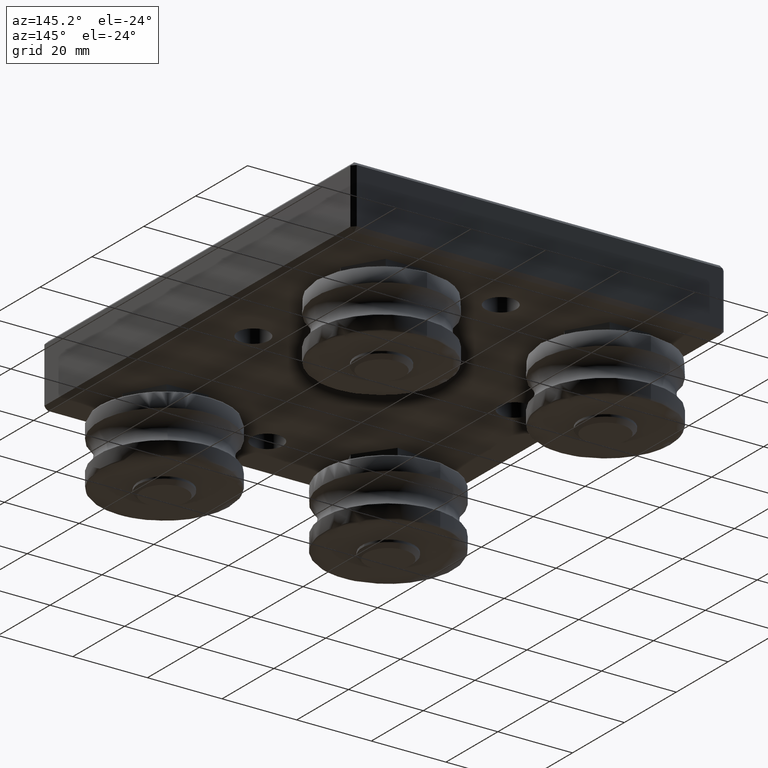
[diagram: clean part render]
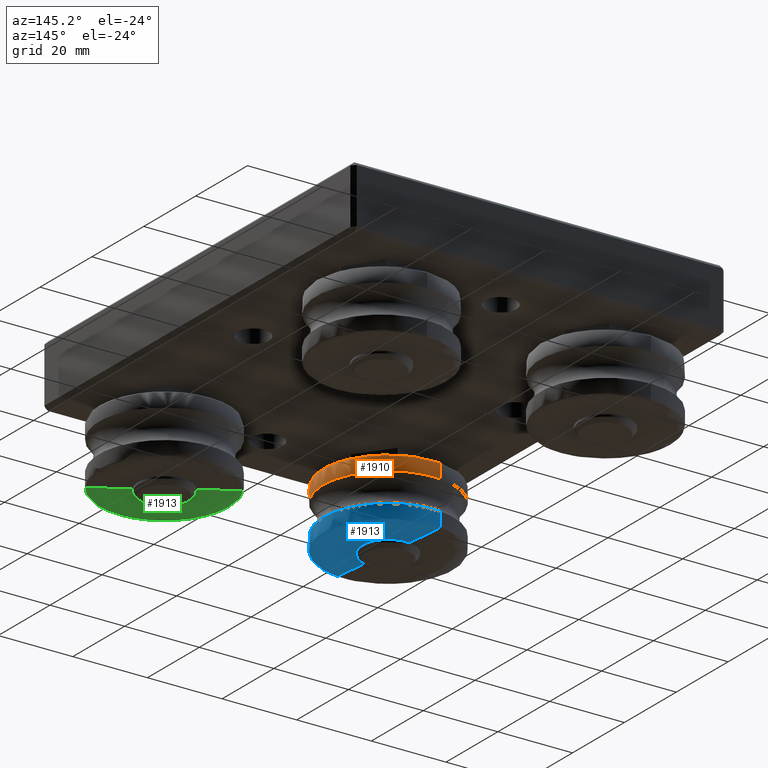
[diagram: same view with three faces highlighted in distinct colors, each labeled with its STEP entity id]
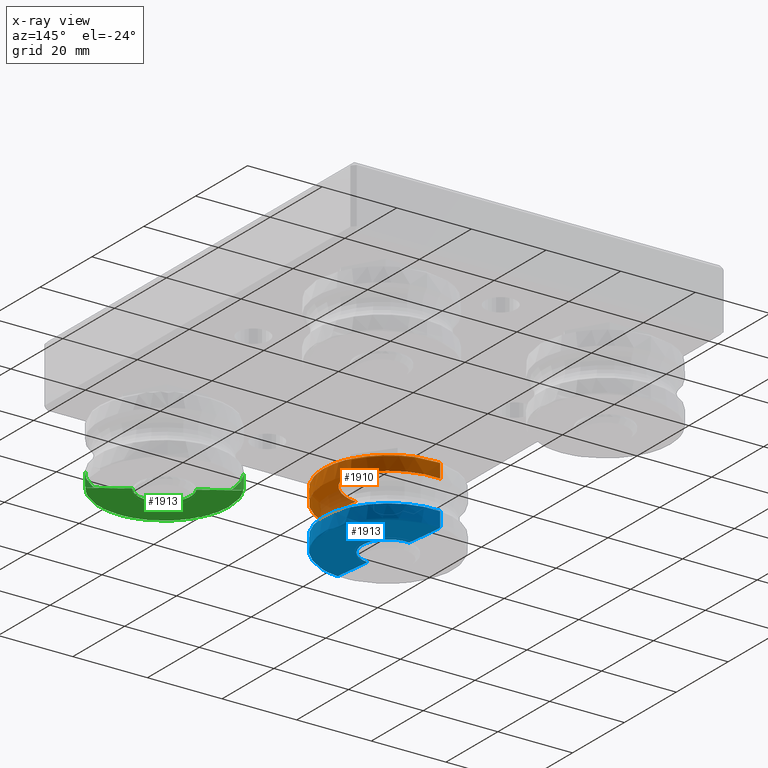
[diagram: x-ray of the same camera — body ghosted, the three highlighted faces saturated]
A machine part, auxiliary view with three faces highlighted in distinct colors.
The next image is the same camera in x-ray (body ghosted, the three faces saturated) — at least one of them is partly hidden behind the body in this view.
Their STEP definitions:

[orange] entity #1910 — the highlighted face is a freeform B-spline surface patch.
#59=(
BOUNDED_CURVE()
B_SPLINE_CURVE(2,(#3633,#3634,#3635,#3636,#3637,#3638,#3639),
 .UNSPECIFIED.,.F.,.F.)
B_SPLINE_CURVE_WITH_KNOTS((3,2,2,3),(-35.0418346007419,-29.0114897153448,
-28.2260915519473,-24.6912064928088),.UNSPECIFIED.)
CURVE()
GEOMETRIC_REPRESENTATION_ITEM()
RATIONAL_B_SPLINE_CURVE((1.,1.,1.,0.707106781186548,1.,1.,1.))
REPRESENTATION_ITEM('')
);
#60=(
BOUNDED_CURVE()
B_SPLINE_CURVE(2,(#3648,#3649,#3650,#3651,#3652,#3653,#3654),
 .UNSPECIFIED.,.F.,.F.)
B_SPLINE_CURVE_WITH_KNOTS((3,2,2,3),(-35.0418346007419,-29.0114897153448,
-28.2260915519473,-24.6912064928088),.UNSPECIFIED.)
CURVE()
GEOMETRIC_REPRESENTATION_ITEM()
RATIONAL_B_SPLINE_CURVE((1.,1.,1.,0.707106781186548,1.,1.,1.))
REPRESENTATION_ITEM('')
);
#73=(
BOUNDED_SURFACE()
B_SPLINE_SURFACE(2,2,((#3569,#3570,#3571,#3572,#3573,#3574,#3575,#3576,
#3577),(#3578,#3579,#3580,#3581,#3582,#3583,#3584,#3585,#3586),(#3587,#3588,
#3589,#3590,#3591,#3592,#3593,#3594,#3595),(#3596,#3597,#3598,#3599,#3600,
#3601,#3602,#3603,#3604),(#3605,#3606,#3607,#3608,#3609,#3610,#3611,#3612,
#3613),(#3614,#3615,#3616,#3617,#3618,#3619,#3620,#3621,#3622),(#3623,#3624,
#3625,#3626,#3627,#3628,#3629,#3630,#3631)),.UNSPECIFIED.,.F.,.T.,.F.)
B_SPLINE_SURFACE_WITH_KNOTS((3,2,2,3),(3,2,2,2,3),(-35.0418346007419,-29.0114897153448,
-28.2260915519473,-24.6590672150182),(4.71238898038469,6.28318530717959,
7.85398163397448,9.42477796076938,10.9955742875643),.UNSPECIFIED.)
GEOMETRIC_REPRESENTATION_ITEM()
RATIONAL_B_SPLINE_SURFACE(((1.,0.707106781186548,1.,0.707106781186548,1.,
0.707106781186548,1.,0.707106781186548,1.),(1.,0.707106781186548,1.,0.707106781186548,
1.,0.707106781186548,1.,0.707106781186548,1.),(1.,0.707106781186548,1.,
0.707106781186548,1.,0.707106781186548,1.,0.707106781186548,1.),(0.707106781186548,
0.5,0.707106781186548,0.5,0.707106781186548,0.5,0.707106781186548,0.5,0.707106781186548),
(1.,0.707106781186548,1.,0.707106781186548,1.,0.707106781186548,1.,0.707106781186548,
1.),(1.,0.707106781186548,1.,0.707106781186548,1.,0.707106781186548,1.,
0.707106781186548,1.),(1.,0.707106781186548,1.,0.707106781186548,1.,0.707106781186548,
1.,0.707106781186548,1.)))
REPRESENTATION_ITEM('')
SURFACE()
);
#283=CIRCLE('',#2178,17.5);
#286=CIRCLE('',#2181,10.9696551146025);
#287=CIRCLE('',#2182,10.9696551146025);
#288=CIRCLE('',#2183,10.9696551146025);
#289=CIRCLE('',#2184,10.9696551146025);
#401=FACE_OUTER_BOUND('',#548,.T.);
#548=EDGE_LOOP('',(#1582,#1583,#1584,#1585,#1586,#1587,#1588));
#961=VERTEX_POINT('',#3563);
#962=VERTEX_POINT('',#3565);
#963=VERTEX_POINT('',#3632);
#964=VERTEX_POINT('',#3640);
#965=VERTEX_POINT('',#3642);
#966=VERTEX_POINT('',#3644);
#967=VERTEX_POINT('',#3646);
#1173=EDGE_CURVE('',#961,#962,#283,.T.);
#1176=EDGE_CURVE('',#963,#961,#59,.T.);
#1177=EDGE_CURVE('',#963,#964,#286,.T.);
#1178=EDGE_CURVE('',#964,#965,#287,.T.);
#1179=EDGE_CURVE('',#965,#966,#288,.T.);
#1180=EDGE_CURVE('',#966,#967,#289,.T.);
#1181=EDGE_CURVE('',#967,#962,#60,.T.);
#1582=ORIENTED_EDGE('',*,*,#1173,.F.);
#1583=ORIENTED_EDGE('',*,*,#1176,.F.);
#1584=ORIENTED_EDGE('',*,*,#1177,.T.);
#1585=ORIENTED_EDGE('',*,*,#1178,.T.);
#1586=ORIENTED_EDGE('',*,*,#1179,.T.);
#1587=ORIENTED_EDGE('',*,*,#1180,.T.);
#1588=ORIENTED_EDGE('',*,*,#1181,.T.);
#1910=ADVANCED_FACE('',(#401),#73,.T.);
#2178=AXIS2_PLACEMENT_3D('',#3566,#2649,#2650);
#2181=AXIS2_PLACEMENT_3D('',#3641,#2655,#2656);
#2182=AXIS2_PLACEMENT_3D('',#3643,#2657,#2658);
#2183=AXIS2_PLACEMENT_3D('',#3645,#2659,#2660);
#2184=AXIS2_PLACEMENT_3D('',#3647,#2661,#2662);
#2649=DIRECTION('center_axis',(0.,0.,-1.));
#2650=DIRECTION('ref_axis',(-1.,0.,0.));
#2655=DIRECTION('center_axis',(1.01208562441235E-14,1.01208562441241E-14,
-1.));
#2656=DIRECTION('ref_axis',(0.,1.,1.01208562441241E-14));
#2657=DIRECTION('center_axis',(1.01208562441235E-14,1.01208562441241E-14,
-1.));
#2658=DIRECTION('ref_axis',(0.,1.,1.01208562441241E-14));
#2659=DIRECTION('center_axis',(1.01208562441235E-14,1.01208562441241E-14,
-1.));
#2660=DIRECTION('ref_axis',(0.,1.,1.01208562441241E-14));
#2661=DIRECTION('center_axis',(1.01208562441235E-14,1.01208562441241E-14,
-1.));
#2662=DIRECTION('ref_axis',(0.,1.,1.01208562441241E-14));
#3563=CARTESIAN_POINT('',(-1.07153055959535E-15,-17.4999999999997,-18.4348850592588));
#3565=CARTESIAN_POINT('',(1.14352971536391E-11,17.5000000000119,-18.4348850592588));
#3566=CARTESIAN_POINT('Origin',(1.14352971536391E-11,1.21291865440298E-11,
-18.4348850592774));
#3569=CARTESIAN_POINT('Ctrl Pts',(1.11299858218672E-11,10.9696551146152,
-14.4000000001203));
#3570=CARTESIAN_POINT('Ctrl Pts',(-10.9696551145919,10.9696551146149,-14.4000000001203));
#3571=CARTESIAN_POINT('Ctrl Pts',(-10.9696551145916,1.18238752122579E-11,
-14.4000000001203));
#3572=CARTESIAN_POINT('Ctrl Pts',(-10.9696551145913,-10.9696551145912,-14.4000000001203));
#3573=CARTESIAN_POINT('Ctrl Pts',(1.1740608485411E-11,-10.9696551145909,
-14.4000000001203));
#3574=CARTESIAN_POINT('Ctrl Pts',(10.9696551146148,-10.9696551145906,-14.4000000001203));
#3575=CARTESIAN_POINT('Ctrl Pts',(10.9696551146145,1.24344978758017E-11,
-14.4000000001203));
#3576=CARTESIAN_POINT('Ctrl Pts',(10.9696551146142,10.9696551146155,-14.4000000001203));
#3577=CARTESIAN_POINT('Ctrl Pts',(1.11299858218672E-11,10.9696551146152,
-14.4000000001203));
#3578=CARTESIAN_POINT('Ctrl Pts',(1.11577413974828E-11,13.9848275573132,
-14.4000000001203));
#3579=CARTESIAN_POINT('Ctrl Pts',(-13.9848275572899,13.9848275573129,-14.4000000001203));
#3580=CARTESIAN_POINT('Ctrl Pts',(-13.9848275572896,1.18516307878735E-11,
-14.4000000001203));
#3581=CARTESIAN_POINT('Ctrl Pts',(-13.9848275572893,-13.9848275572892,-14.4000000001203));
#3582=CARTESIAN_POINT('Ctrl Pts',(1.17128529097954E-11,-13.9848275572889,
-14.4000000001203));
#3583=CARTESIAN_POINT('Ctrl Pts',(13.9848275573127,-13.9848275572886,-14.4000000001203));
#3584=CARTESIAN_POINT('Ctrl Pts',(13.9848275573125,1.24067423001861E-11,
-14.4000000001203));
#3585=CARTESIAN_POINT('Ctrl Pts',(13.9848275573122,13.9848275573134,-14.4000000001203));
#3586=CARTESIAN_POINT('Ctrl Pts',(1.11577413974828E-11,13.9848275573132,
-14.4000000001203));
#3587=CARTESIAN_POINT('Ctrl Pts',(1.11577413974828E-11,17.0000000000122,
-14.4000000001203));
#3588=CARTESIAN_POINT('Ctrl Pts',(-16.9999999999889,17.0000000000119,-14.4000000001203));
#3589=CARTESIAN_POINT('Ctrl Pts',(-16.9999999999886,1.18516307878735E-11,
-14.4000000001203));
#3590=CARTESIAN_POINT('Ctrl Pts',(-16.9999999999883,-16.9999999999882,-14.4000000001203));
#3591=CARTESIAN_POINT('Ctrl Pts',(1.17128529097954E-11,-16.9999999999879,
-14.4000000001203));
#3592=CARTESIAN_POINT('Ctrl Pts',(17.0000000000117,-16.9999999999876,-14.4000000001203));
#3593=CARTESIAN_POINT('Ctrl Pts',(17.0000000000115,1.24067423001861E-11,
-14.4000000001203));
#3594=CARTESIAN_POINT('Ctrl Pts',(17.0000000000112,17.0000000000124,-14.4000000001203));
#3595=CARTESIAN_POINT('Ctrl Pts',(1.11577413974828E-11,17.0000000000122,
-14.4000000001203));
#3596=CARTESIAN_POINT('Ctrl Pts',(1.11799348284053E-11,17.5000000000124,
-14.4000000001202));
#3597=CARTESIAN_POINT('Ctrl Pts',(-17.4999999999891,17.5000000000121,-14.4000000001202));
#3598=CARTESIAN_POINT('Ctrl Pts',(-17.4999999999888,1.1873824218796E-11,
-14.4000000001202));
#3599=CARTESIAN_POINT('Ctrl Pts',(-17.4999999999885,-17.4999999999884,-14.4000000001202));
#3600=CARTESIAN_POINT('Ctrl Pts',(1.16906594788729E-11,-17.4999999999881,
-14.4000000001202));
#3601=CARTESIAN_POINT('Ctrl Pts',(17.5000000000119,-17.4999999999878,-14.4000000001202));
#3602=CARTESIAN_POINT('Ctrl Pts',(17.5000000000117,1.23845488692636E-11,
-14.4000000001202));
#3603=CARTESIAN_POINT('Ctrl Pts',(17.5000000000114,17.5000000000126,-14.4000000001202));
#3604=CARTESIAN_POINT('Ctrl Pts',(1.11799348284053E-11,17.5000000000124,
-14.4000000001202));
#3605=CARTESIAN_POINT('Ctrl Pts',(1.11577413974828E-11,17.5000000000122,
-14.9000000001203));
#3606=CARTESIAN_POINT('Ctrl Pts',(-17.4999999999889,17.5000000000119,-14.9000000001203));
#3607=CARTESIAN_POINT('Ctrl Pts',(-17.4999999999886,1.18516307878735E-11,
-14.9000000001203));
#3608=CARTESIAN_POINT('Ctrl Pts',(-17.4999999999883,-17.4999999999882,-14.9000000001203));
#3609=CARTESIAN_POINT('Ctrl Pts',(1.17128529097954E-11,-17.4999999999879,
-14.9000000001203));
#3610=CARTESIAN_POINT('Ctrl Pts',(17.5000000000117,-17.4999999999876,-14.9000000001203));
#3611=CARTESIAN_POINT('Ctrl Pts',(17.5000000000115,1.24067423001861E-11,
-14.9000000001203));
#3612=CARTESIAN_POINT('Ctrl Pts',(17.5000000000112,17.5000000000124,-14.9000000001203));
#3613=CARTESIAN_POINT('Ctrl Pts',(1.11577413974828E-11,17.5000000000122,
-14.9000000001203));
#3614=CARTESIAN_POINT('Ctrl Pts',(1.11577413974828E-11,17.5000000000122,
-16.6835121685849));
#3615=CARTESIAN_POINT('Ctrl Pts',(-17.4999999999889,17.5000000000119,-16.6835121685849));
#3616=CARTESIAN_POINT('Ctrl Pts',(-17.4999999999886,1.18516307878735E-11,
-16.6835121685849));
#3617=CARTESIAN_POINT('Ctrl Pts',(-17.4999999999883,-17.4999999999882,-16.6835121685849));
#3618=CARTESIAN_POINT('Ctrl Pts',(1.17128529097954E-11,-17.4999999999879,
-16.6835121685849));
#3619=CARTESIAN_POINT('Ctrl Pts',(17.5000000000117,-17.4999999999876,-16.6835121685849));
#3620=CARTESIAN_POINT('Ctrl Pts',(17.5000000000115,1.24067423001861E-11,
-16.6835121685849));
#3621=CARTESIAN_POINT('Ctrl Pts',(17.5000000000112,17.5000000000124,-16.6835121685849));
#3622=CARTESIAN_POINT('Ctrl Pts',(1.11577413974828E-11,17.5000000000122,
-16.6835121685849));
#3623=CARTESIAN_POINT('Ctrl Pts',(1.11577413974828E-11,17.5000000000122,
-18.4670243370494));
#3624=CARTESIAN_POINT('Ctrl Pts',(-17.4999999999889,17.5000000000119,-18.4670243370494));
#3625=CARTESIAN_POINT('Ctrl Pts',(-17.4999999999886,1.18516307878735E-11,
-18.4670243370494));
#3626=CARTESIAN_POINT('Ctrl Pts',(-17.4999999999883,-17.4999999999882,-18.4670243370494));
#3627=CARTESIAN_POINT('Ctrl Pts',(1.17128529097954E-11,-17.4999999999879,
-18.4670243370494));
#3628=CARTESIAN_POINT('Ctrl Pts',(17.5000000000117,-17.4999999999876,-18.4670243370494));
#3629=CARTESIAN_POINT('Ctrl Pts',(17.5000000000115,1.24067423001861E-11,
-18.4670243370494));
#3630=CARTESIAN_POINT('Ctrl Pts',(17.5000000000112,17.5000000000124,-18.4670243370494));
#3631=CARTESIAN_POINT('Ctrl Pts',(1.11577413974828E-11,17.5000000000122,
-18.4670243370494));
#3632=CARTESIAN_POINT('',(1.15671361378133E-11,-10.9696551145909,-14.4000000001203));
#3633=CARTESIAN_POINT('Ctrl Pts',(1.1740608485411E-11,-10.9696551145909,
-14.4000000001203));
#3634=CARTESIAN_POINT('Ctrl Pts',(1.17128529097954E-11,-13.9848275572889,
-14.4000000001203));
#3635=CARTESIAN_POINT('Ctrl Pts',(1.17128529097954E-11,-16.9999999999879,
-14.4000000001203));
#3636=CARTESIAN_POINT('Ctrl Pts',(1.16906594788729E-11,-17.4999999999881,
-14.4000000001202));
#3637=CARTESIAN_POINT('Ctrl Pts',(1.17128529097954E-11,-17.4999999999879,
-14.9000000001203));
#3638=CARTESIAN_POINT('Ctrl Pts',(1.17128529097954E-11,-17.4999999999879,
-16.6674425296896));
#3639=CARTESIAN_POINT('Ctrl Pts',(1.17128529097954E-11,-17.4999999999879,
-18.4348850592588));
#3640=CARTESIAN_POINT('',(-5.48482755730141,-9.50000000000017,-14.4000000001201));
#3641=CARTESIAN_POINT('Origin',(1.14352971536391E-11,1.14908083048704E-11,
-14.4000000001202));
#3642=CARTESIAN_POINT('',(-10.9696551146029,-1.84929452501313E-13,-14.4000000001202));
#3643=CARTESIAN_POINT('Origin',(1.14352971536391E-11,1.14908083048704E-11,
-14.4000000001202));
#3644=CARTESIAN_POINT('',(-5.48482755730145,9.49999999999982,-14.4000000001203));
#3645=CARTESIAN_POINT('Origin',(1.14352971536391E-11,1.14908083048704E-11,
-14.4000000001202));
#3646=CARTESIAN_POINT('',(1.14352971536391E-11,10.9696551146148,-14.4000000001203));
#3647=CARTESIAN_POINT('Origin',(1.14352971536391E-11,1.14908083048704E-11,
-14.4000000001202));
#3648=CARTESIAN_POINT('Ctrl Pts',(1.11299858218672E-11,10.9696551146152,
-14.4000000001203));
#3649=CARTESIAN_POINT('Ctrl Pts',(1.11577413974828E-11,13.9848275573132,
-14.4000000001203));
#3650=CARTESIAN_POINT('Ctrl Pts',(1.11577413974828E-11,17.0000000000122,
-14.4000000001203));
#3651=CARTESIAN_POINT('Ctrl Pts',(1.11799348284053E-11,17.5000000000124,
-14.4000000001202));
#3652=CARTESIAN_POINT('Ctrl Pts',(1.11577413974828E-11,17.5000000000122,
-14.9000000001203));
#3653=CARTESIAN_POINT('Ctrl Pts',(1.11577413974828E-11,17.5000000000122,
-16.6674425296896));
#3654=CARTESIAN_POINT('Ctrl Pts',(1.11577413974828E-11,17.5000000000122,
-18.4348850592588));

[blue] entity #1913 — the highlighted face is a freeform B-spline surface patch.
#61=(
BOUNDED_CURVE()
B_SPLINE_CURVE(2,(#3788,#3789,#3790,#3791,#3792,#3793,#3794),
 .UNSPECIFIED.,.F.,.F.)
B_SPLINE_CURVE_WITH_KNOTS((3,2,2,3),(-15.7344967849095,-12.1996117257709,
-11.4142135623734,-1.41421356237309),.UNSPECIFIED.)
CURVE()
GEOMETRIC_REPRESENTATION_ITEM()
RATIONAL_B_SPLINE_CURVE((1.,1.,1.,0.707106781186548,1.,1.,1.))
REPRESENTATION_ITEM('')
);
#62=(
BOUNDED_CURVE()
B_SPLINE_CURVE(2,(#3796,#3797,#3798,#3799,#3800,#3801,#3802),
 .UNSPECIFIED.,.F.,.F.)
B_SPLINE_CURVE_WITH_KNOTS((3,2,2,3),(-15.7344967849095,-12.1996117257709,
-11.4142135623734,-1.41421356237309),.UNSPECIFIED.)
CURVE()
GEOMETRIC_REPRESENTATION_ITEM()
RATIONAL_B_SPLINE_CURVE((1.,1.,1.,0.707106781186548,1.,1.,1.))
REPRESENTATION_ITEM('')
);
#76=(
BOUNDED_SURFACE()
B_SPLINE_SURFACE(2,2,((#3803,#3804,#3805,#3806,#3807,#3808,#3809,#3810,
#3811),(#3812,#3813,#3814,#3815,#3816,#3817,#3818,#3819,#3820),(#3821,#3822,
#3823,#3824,#3825,#3826,#3827,#3828,#3829),(#3830,#3831,#3832,#3833,#3834,
#3835,#3836,#3837,#3838),(#3839,#3840,#3841,#3842,#3843,#3844,#3845,#3846,
#3847),(#3848,#3849,#3850,#3851,#3852,#3853,#3854,#3855,#3856),(#3857,#3858,
#3859,#3860,#3861,#3862,#3863,#3864,#3865)),.UNSPECIFIED.,.F.,.T.,.F.)
B_SPLINE_SURFACE_WITH_KNOTS((3,2,2,3),(3,2,2,2,3),(-15.7666360627003,-12.1996117257709,
-11.4142135623734,-1.41421356237309),(-1.5707963267949,0.,1.5707963267949,
3.14159265358979,4.71238898038469),.UNSPECIFIED.)
GEOMETRIC_REPRESENTATION_ITEM()
RATIONAL_B_SPLINE_SURFACE(((1.,0.707106781186548,1.,0.707106781186548,1.,
0.707106781186548,1.,0.707106781186548,1.),(1.,0.707106781186548,1.,0.707106781186548,
1.,0.707106781186548,1.,0.707106781186548,1.),(1.,0.707106781186548,1.,
0.707106781186548,1.,0.707106781186548,1.,0.707106781186548,1.),(0.707106781186548,
0.5,0.707106781186548,0.5,0.707106781186548,0.5,0.707106781186548,0.5,0.707106781186548),
(1.,0.707106781186548,1.,0.707106781186548,1.,0.707106781186548,1.,0.707106781186548,
1.),(1.,0.707106781186548,1.,0.707106781186548,1.,0.707106781186548,1.,
0.707106781186548,1.),(1.,0.707106781186548,1.,0.707106781186548,1.,0.707106781186548,
1.,0.707106781186548,1.)))
REPRESENTATION_ITEM('')
SURFACE()
);
#279=CIRCLE('',#2174,17.4999999999996);
#295=CIRCLE('',#2190,6.99999999999949);
#296=CIRCLE('',#2191,6.99999999999949);
#404=FACE_OUTER_BOUND('',#551,.T.);
#551=EDGE_LOOP('',(#1602,#1603,#1604,#1605,#1606));
#944=VERTEX_POINT('',#3521);
#945=VERTEX_POINT('',#3523);
#946=VERTEX_POINT('',#3525);
#957=VERTEX_POINT('',#3556);
#958=VERTEX_POINT('',#3557);
#1169=EDGE_CURVE('',#957,#958,#279,.F.);
#1186=EDGE_CURVE('',#958,#946,#61,.T.);
#1188=EDGE_CURVE('',#957,#945,#62,.T.);
#1189=EDGE_CURVE('',#944,#945,#295,.T.);
#1190=EDGE_CURVE('',#946,#944,#296,.T.);
#1602=ORIENTED_EDGE('',*,*,#1169,.F.);
#1603=ORIENTED_EDGE('',*,*,#1188,.T.);
#1604=ORIENTED_EDGE('',*,*,#1189,.F.);
#1605=ORIENTED_EDGE('',*,*,#1190,.F.);
#1606=ORIENTED_EDGE('',*,*,#1186,.F.);
#1913=ADVANCED_FACE('',(#404),#76,.T.);
#2174=AXIS2_PLACEMENT_3D('',#3558,#2641,#2642);
#2190=AXIS2_PLACEMENT_3D('',#3866,#2673,#2674);
#2191=AXIS2_PLACEMENT_3D('',#3867,#2675,#2676);
#2641=DIRECTION('center_axis',(1.98389456597708E-15,0.,-1.));
#2642=DIRECTION('ref_axis',(-1.,0.,-1.98389456597708E-15));
#2673=DIRECTION('center_axis',(5.15460690004541E-14,5.15460690004614E-14,
-1.));
#2674=DIRECTION('ref_axis',(0.,1.,5.15460690004614E-14));
#2675=DIRECTION('center_axis',(5.15460690004541E-14,5.15460690004614E-14,
-1.));
#2676=DIRECTION('ref_axis',(0.,1.,5.15460690004614E-14));
#3521=CARTESIAN_POINT('',(-6.99999999999975,-4.94703179514622E-13,-30.3000000001195));
#3523=CARTESIAN_POINT('',(1.14352971536391E-11,7.00000000001182,-30.3000000001203));
#3525=CARTESIAN_POINT('',(1.14352971536391E-11,-6.99999999998718,-30.3000000001203));
#3556=CARTESIAN_POINT('',(1.03181352351101E-11,17.500000000012,-26.2651149409818));
#3557=CARTESIAN_POINT('',(1.14352971536391E-11,-17.4999999999877,-26.2651149409818));
#3558=CARTESIAN_POINT('Origin',(1.10942254597084E-11,1.2115308756222E-11,
-26.2651149409632));
#3788=CARTESIAN_POINT('Ctrl Pts',(1.14352971536391E-11,-17.4999999999877,
-26.2651149409818));
#3789=CARTESIAN_POINT('Ctrl Pts',(1.14352971536391E-11,-17.4999999999877,
-28.0325574705511));
#3790=CARTESIAN_POINT('Ctrl Pts',(1.14352971536391E-11,-17.4999999999877,
-29.8000000001203));
#3791=CARTESIAN_POINT('Ctrl Pts',(1.16186841942599E-11,-17.4999999999876,
-30.3000000001205));
#3792=CARTESIAN_POINT('Ctrl Pts',(1.14352971536391E-11,-16.9999999999877,
-30.3000000001203));
#3793=CARTESIAN_POINT('Ctrl Pts',(1.14352971536391E-11,-11.9999999999876,
-30.3000000001203));
#3794=CARTESIAN_POINT('Ctrl Pts',(1.14352971536391E-11,-6.99999999998718,
-30.3000000001203));
#3796=CARTESIAN_POINT('Ctrl Pts',(1.14352971536391E-11,17.5000000000119,
-26.2651149409818));
#3797=CARTESIAN_POINT('Ctrl Pts',(1.14352971536391E-11,17.5000000000119,
-28.0325574705511));
#3798=CARTESIAN_POINT('Ctrl Pts',(1.14352971536391E-11,17.5000000000119,
-29.8000000001203));
#3799=CARTESIAN_POINT('Ctrl Pts',(1.16186841942599E-11,17.5000000000119,
-30.3000000001205));
#3800=CARTESIAN_POINT('Ctrl Pts',(1.14352971536391E-11,17.0000000000118,
-30.3000000001203));
#3801=CARTESIAN_POINT('Ctrl Pts',(1.14352971536391E-11,12.0000000000118,
-30.3000000001203));
#3802=CARTESIAN_POINT('Ctrl Pts',(1.14352971536391E-11,7.00000000001182,
-30.3000000001203));
#3803=CARTESIAN_POINT('Ctrl Pts',(1.08304837304214E-11,17.5000000000118,
-26.232975663191));
#3804=CARTESIAN_POINT('Ctrl Pts',(-17.4999999999889,17.5000000000115,-26.232975663191));
#3805=CARTESIAN_POINT('Ctrl Pts',(-17.4999999999886,1.18516307878735E-11,
-26.232975663191));
#3806=CARTESIAN_POINT('Ctrl Pts',(-17.4999999999883,-17.4999999999878,-26.232975663191));
#3807=CARTESIAN_POINT('Ctrl Pts',(1.13578396671184E-11,-17.4999999999876,
-26.232975663191));
#3808=CARTESIAN_POINT('Ctrl Pts',(17.500000000011,-17.4999999999873,-26.2329756631909));
#3809=CARTESIAN_POINT('Ctrl Pts',(17.5000000000108,1.23789867245705E-11,
-26.2329756631909));
#3810=CARTESIAN_POINT('Ctrl Pts',(17.5000000000105,17.5000000000121,-26.2329756631909));
#3811=CARTESIAN_POINT('Ctrl Pts',(1.08304837304214E-11,17.5000000000118,
-26.232975663191));
#3812=CARTESIAN_POINT('Ctrl Pts',(1.08340220305207E-11,17.5000000000118,
-28.0164878316557));
#3813=CARTESIAN_POINT('Ctrl Pts',(-17.4999999999889,17.5000000000115,-28.0164878316557));
#3814=CARTESIAN_POINT('Ctrl Pts',(-17.4999999999886,1.18516307878735E-11,
-28.0164878316557));
#3815=CARTESIAN_POINT('Ctrl Pts',(-17.4999999999883,-17.4999999999878,-28.0164878316557));
#3816=CARTESIAN_POINT('Ctrl Pts',(1.13613779672177E-11,-17.4999999999876,
-28.0164878316557));
#3817=CARTESIAN_POINT('Ctrl Pts',(17.5000000000111,-17.4999999999873,-28.0164878316556));
#3818=CARTESIAN_POINT('Ctrl Pts',(17.5000000000108,1.23789867245705E-11,
-28.0164878316556));
#3819=CARTESIAN_POINT('Ctrl Pts',(17.5000000000105,17.5000000000121,-28.0164878316556));
#3820=CARTESIAN_POINT('Ctrl Pts',(1.08340220305207E-11,17.5000000000118,
-28.0164878316557));
#3821=CARTESIAN_POINT('Ctrl Pts',(1.08375603306201E-11,17.5000000000118,
-29.8000000001203));
#3822=CARTESIAN_POINT('Ctrl Pts',(-17.4999999999889,17.5000000000115,-29.8000000001203));
#3823=CARTESIAN_POINT('Ctrl Pts',(-17.4999999999886,1.18516307878735E-11,
-29.8000000001203));
#3824=CARTESIAN_POINT('Ctrl Pts',(-17.4999999999883,-17.4999999999878,-29.8000000001203));
#3825=CARTESIAN_POINT('Ctrl Pts',(1.13649162673171E-11,-17.4999999999876,
-29.8000000001203));
#3826=CARTESIAN_POINT('Ctrl Pts',(17.5000000000111,-17.4999999999873,-29.8000000001202));
#3827=CARTESIAN_POINT('Ctrl Pts',(17.5000000000108,1.23789867245705E-11,
-29.8000000001202));
#3828=CARTESIAN_POINT('Ctrl Pts',(17.5000000000105,17.5000000000121,-29.8000000001202));
#3829=CARTESIAN_POINT('Ctrl Pts',(1.08375603306201E-11,17.5000000000118,
-29.8000000001203));
#3830=CARTESIAN_POINT('Ctrl Pts',(1.08607457088256E-11,17.500000000012,
-30.3000000001205));
#3831=CARTESIAN_POINT('Ctrl Pts',(-17.499999999989,17.5000000000118,-30.3000000001205));
#3832=CARTESIAN_POINT('Ctrl Pts',(-17.4999999999888,1.1873824218796E-11,
-30.3000000001205));
#3833=CARTESIAN_POINT('Ctrl Pts',(-17.4999999999886,-17.499999999988,-30.3000000001205));
#3834=CARTESIAN_POINT('Ctrl Pts',(1.13437147836776E-11,-17.4999999999878,
-30.3000000001205));
#3835=CARTESIAN_POINT('Ctrl Pts',(17.5000000000112,-17.4999999999875,-30.3000000001204));
#3836=CARTESIAN_POINT('Ctrl Pts',(17.500000000011,1.2356793293648E-11,-30.3000000001204));
#3837=CARTESIAN_POINT('Ctrl Pts',(17.5000000000108,17.5000000000123,-30.3000000001204));
#3838=CARTESIAN_POINT('Ctrl Pts',(1.08607457088256E-11,17.500000000012,
-30.3000000001205));
#3839=CARTESIAN_POINT('Ctrl Pts',(1.08385522779031E-11,17.0000000000118,
-30.3000000001203));
#3840=CARTESIAN_POINT('Ctrl Pts',(-16.9999999999889,17.0000000000115,-30.3000000001203));
#3841=CARTESIAN_POINT('Ctrl Pts',(-16.9999999999886,1.18516307878735E-11,
-30.3000000001203));
#3842=CARTESIAN_POINT('Ctrl Pts',(-16.9999999999883,-16.9999999999878,-30.3000000001203));
#3843=CARTESIAN_POINT('Ctrl Pts',(1.13659082146001E-11,-16.9999999999876,
-30.3000000001203));
#3844=CARTESIAN_POINT('Ctrl Pts',(17.0000000000111,-16.9999999999873,-30.3000000001202));
#3845=CARTESIAN_POINT('Ctrl Pts',(17.0000000000108,1.23789867245705E-11,
-30.3000000001202));
#3846=CARTESIAN_POINT('Ctrl Pts',(17.0000000000105,17.0000000000121,-30.3000000001202));
#3847=CARTESIAN_POINT('Ctrl Pts',(1.08385522779031E-11,17.0000000000118,
-30.3000000001203));
#3848=CARTESIAN_POINT('Ctrl Pts',(1.08107967022875E-11,12.0000000000118,
-30.3000000001203));
#3849=CARTESIAN_POINT('Ctrl Pts',(-11.9999999999889,12.0000000000115,-30.3000000001203));
#3850=CARTESIAN_POINT('Ctrl Pts',(-11.9999999999886,1.18238752122579E-11,
-30.3000000001203));
#3851=CARTESIAN_POINT('Ctrl Pts',(-11.9999999999883,-11.9999999999879,-30.3000000001203));
#3852=CARTESIAN_POINT('Ctrl Pts',(1.13936637902157E-11,-11.9999999999876,
-30.3000000001203));
#3853=CARTESIAN_POINT('Ctrl Pts',(12.0000000000111,-11.9999999999873,-30.3000000001203));
#3854=CARTESIAN_POINT('Ctrl Pts',(12.0000000000108,1.24067423001861E-11,
-30.3000000001203));
#3855=CARTESIAN_POINT('Ctrl Pts',(12.0000000000105,12.0000000000121,-30.3000000001203));
#3856=CARTESIAN_POINT('Ctrl Pts',(1.08107967022875E-11,12.0000000000118,
-30.3000000001203));
#3857=CARTESIAN_POINT('Ctrl Pts',(1.08107967022875E-11,7.00000000001179,
-30.3000000001203));
#3858=CARTESIAN_POINT('Ctrl Pts',(-6.99999999998886,7.0000000000115,-30.3000000001203));
#3859=CARTESIAN_POINT('Ctrl Pts',(-6.99999999998857,1.18238752122579E-11,
-30.3000000001203));
#3860=CARTESIAN_POINT('Ctrl Pts',(-6.99999999998828,-6.99999999998785,-30.3000000001203));
#3861=CARTESIAN_POINT('Ctrl Pts',(1.13936637902157E-11,-6.99999999998756,
-30.3000000001203));
#3862=CARTESIAN_POINT('Ctrl Pts',(7.00000000001107,-6.99999999998727,-30.3000000001203));
#3863=CARTESIAN_POINT('Ctrl Pts',(7.00000000001078,1.24067423001861E-11,
-30.3000000001203));
#3864=CARTESIAN_POINT('Ctrl Pts',(7.00000000001048,7.00000000001208,-30.3000000001203));
#3865=CARTESIAN_POINT('Ctrl Pts',(1.08107967022875E-11,7.00000000001179,
-30.3000000001203));
#3866=CARTESIAN_POINT('Origin',(1.14352971536391E-11,1.18238752122579E-11,
-30.30000000012));
#3867=CARTESIAN_POINT('Origin',(1.14352971536391E-11,1.18238752122579E-11,
-30.30000000012));

[green] entity #1913 — the highlighted face is a freeform B-spline surface patch.
#61=(
BOUNDED_CURVE()
B_SPLINE_CURVE(2,(#3788,#3789,#3790,#3791,#3792,#3793,#3794),
 .UNSPECIFIED.,.F.,.F.)
B_SPLINE_CURVE_WITH_KNOTS((3,2,2,3),(-15.7344967849095,-12.1996117257709,
-11.4142135623734,-1.41421356237309),.UNSPECIFIED.)
CURVE()
GEOMETRIC_REPRESENTATION_ITEM()
RATIONAL_B_SPLINE_CURVE((1.,1.,1.,0.707106781186548,1.,1.,1.))
REPRESENTATION_ITEM('')
);
#62=(
BOUNDED_CURVE()
B_SPLINE_CURVE(2,(#3796,#3797,#3798,#3799,#3800,#3801,#3802),
 .UNSPECIFIED.,.F.,.F.)
B_SPLINE_CURVE_WITH_KNOTS((3,2,2,3),(-15.7344967849095,-12.1996117257709,
-11.4142135623734,-1.41421356237309),.UNSPECIFIED.)
CURVE()
GEOMETRIC_REPRESENTATION_ITEM()
RATIONAL_B_SPLINE_CURVE((1.,1.,1.,0.707106781186548,1.,1.,1.))
REPRESENTATION_ITEM('')
);
#76=(
BOUNDED_SURFACE()
B_SPLINE_SURFACE(2,2,((#3803,#3804,#3805,#3806,#3807,#3808,#3809,#3810,
#3811),(#3812,#3813,#3814,#3815,#3816,#3817,#3818,#3819,#3820),(#3821,#3822,
#3823,#3824,#3825,#3826,#3827,#3828,#3829),(#3830,#3831,#3832,#3833,#3834,
#3835,#3836,#3837,#3838),(#3839,#3840,#3841,#3842,#3843,#3844,#3845,#3846,
#3847),(#3848,#3849,#3850,#3851,#3852,#3853,#3854,#3855,#3856),(#3857,#3858,
#3859,#3860,#3861,#3862,#3863,#3864,#3865)),.UNSPECIFIED.,.F.,.T.,.F.)
B_SPLINE_SURFACE_WITH_KNOTS((3,2,2,3),(3,2,2,2,3),(-15.7666360627003,-12.1996117257709,
-11.4142135623734,-1.41421356237309),(-1.5707963267949,0.,1.5707963267949,
3.14159265358979,4.71238898038469),.UNSPECIFIED.)
GEOMETRIC_REPRESENTATION_ITEM()
RATIONAL_B_SPLINE_SURFACE(((1.,0.707106781186548,1.,0.707106781186548,1.,
0.707106781186548,1.,0.707106781186548,1.),(1.,0.707106781186548,1.,0.707106781186548,
1.,0.707106781186548,1.,0.707106781186548,1.),(1.,0.707106781186548,1.,
0.707106781186548,1.,0.707106781186548,1.,0.707106781186548,1.),(0.707106781186548,
0.5,0.707106781186548,0.5,0.707106781186548,0.5,0.707106781186548,0.5,0.707106781186548),
(1.,0.707106781186548,1.,0.707106781186548,1.,0.707106781186548,1.,0.707106781186548,
1.),(1.,0.707106781186548,1.,0.707106781186548,1.,0.707106781186548,1.,
0.707106781186548,1.),(1.,0.707106781186548,1.,0.707106781186548,1.,0.707106781186548,
1.,0.707106781186548,1.)))
REPRESENTATION_ITEM('')
SURFACE()
);
#279=CIRCLE('',#2174,17.4999999999996);
#295=CIRCLE('',#2190,6.99999999999949);
#296=CIRCLE('',#2191,6.99999999999949);
#404=FACE_OUTER_BOUND('',#551,.T.);
#551=EDGE_LOOP('',(#1602,#1603,#1604,#1605,#1606));
#944=VERTEX_POINT('',#3521);
#945=VERTEX_POINT('',#3523);
#946=VERTEX_POINT('',#3525);
#957=VERTEX_POINT('',#3556);
#958=VERTEX_POINT('',#3557);
#1169=EDGE_CURVE('',#957,#958,#279,.F.);
#1186=EDGE_CURVE('',#958,#946,#61,.T.);
#1188=EDGE_CURVE('',#957,#945,#62,.T.);
#1189=EDGE_CURVE('',#944,#945,#295,.T.);
#1190=EDGE_CURVE('',#946,#944,#296,.T.);
#1602=ORIENTED_EDGE('',*,*,#1169,.F.);
#1603=ORIENTED_EDGE('',*,*,#1188,.T.);
#1604=ORIENTED_EDGE('',*,*,#1189,.F.);
#1605=ORIENTED_EDGE('',*,*,#1190,.F.);
#1606=ORIENTED_EDGE('',*,*,#1186,.F.);
#1913=ADVANCED_FACE('',(#404),#76,.T.);
#2174=AXIS2_PLACEMENT_3D('',#3558,#2641,#2642);
#2190=AXIS2_PLACEMENT_3D('',#3866,#2673,#2674);
#2191=AXIS2_PLACEMENT_3D('',#3867,#2675,#2676);
#2641=DIRECTION('center_axis',(1.98389456597708E-15,0.,-1.));
#2642=DIRECTION('ref_axis',(-1.,0.,-1.98389456597708E-15));
#2673=DIRECTION('center_axis',(5.15460690004541E-14,5.15460690004614E-14,
-1.));
#2674=DIRECTION('ref_axis',(0.,1.,5.15460690004614E-14));
#2675=DIRECTION('center_axis',(5.15460690004541E-14,5.15460690004614E-14,
-1.));
#2676=DIRECTION('ref_axis',(0.,1.,5.15460690004614E-14));
#3521=CARTESIAN_POINT('',(-6.99999999999975,-4.94703179514622E-13,-30.3000000001195));
#3523=CARTESIAN_POINT('',(1.14352971536391E-11,7.00000000001182,-30.3000000001203));
#3525=CARTESIAN_POINT('',(1.14352971536391E-11,-6.99999999998718,-30.3000000001203));
#3556=CARTESIAN_POINT('',(1.03181352351101E-11,17.500000000012,-26.2651149409818));
#3557=CARTESIAN_POINT('',(1.14352971536391E-11,-17.4999999999877,-26.2651149409818));
#3558=CARTESIAN_POINT('Origin',(1.10942254597084E-11,1.2115308756222E-11,
-26.2651149409632));
#3788=CARTESIAN_POINT('Ctrl Pts',(1.14352971536391E-11,-17.4999999999877,
-26.2651149409818));
#3789=CARTESIAN_POINT('Ctrl Pts',(1.14352971536391E-11,-17.4999999999877,
-28.0325574705511));
#3790=CARTESIAN_POINT('Ctrl Pts',(1.14352971536391E-11,-17.4999999999877,
-29.8000000001203));
#3791=CARTESIAN_POINT('Ctrl Pts',(1.16186841942599E-11,-17.4999999999876,
-30.3000000001205));
#3792=CARTESIAN_POINT('Ctrl Pts',(1.14352971536391E-11,-16.9999999999877,
-30.3000000001203));
#3793=CARTESIAN_POINT('Ctrl Pts',(1.14352971536391E-11,-11.9999999999876,
-30.3000000001203));
#3794=CARTESIAN_POINT('Ctrl Pts',(1.14352971536391E-11,-6.99999999998718,
-30.3000000001203));
#3796=CARTESIAN_POINT('Ctrl Pts',(1.14352971536391E-11,17.5000000000119,
-26.2651149409818));
#3797=CARTESIAN_POINT('Ctrl Pts',(1.14352971536391E-11,17.5000000000119,
-28.0325574705511));
#3798=CARTESIAN_POINT('Ctrl Pts',(1.14352971536391E-11,17.5000000000119,
-29.8000000001203));
#3799=CARTESIAN_POINT('Ctrl Pts',(1.16186841942599E-11,17.5000000000119,
-30.3000000001205));
#3800=CARTESIAN_POINT('Ctrl Pts',(1.14352971536391E-11,17.0000000000118,
-30.3000000001203));
#3801=CARTESIAN_POINT('Ctrl Pts',(1.14352971536391E-11,12.0000000000118,
-30.3000000001203));
#3802=CARTESIAN_POINT('Ctrl Pts',(1.14352971536391E-11,7.00000000001182,
-30.3000000001203));
#3803=CARTESIAN_POINT('Ctrl Pts',(1.08304837304214E-11,17.5000000000118,
-26.232975663191));
#3804=CARTESIAN_POINT('Ctrl Pts',(-17.4999999999889,17.5000000000115,-26.232975663191));
#3805=CARTESIAN_POINT('Ctrl Pts',(-17.4999999999886,1.18516307878735E-11,
-26.232975663191));
#3806=CARTESIAN_POINT('Ctrl Pts',(-17.4999999999883,-17.4999999999878,-26.232975663191));
#3807=CARTESIAN_POINT('Ctrl Pts',(1.13578396671184E-11,-17.4999999999876,
-26.232975663191));
#3808=CARTESIAN_POINT('Ctrl Pts',(17.500000000011,-17.4999999999873,-26.2329756631909));
#3809=CARTESIAN_POINT('Ctrl Pts',(17.5000000000108,1.23789867245705E-11,
-26.2329756631909));
#3810=CARTESIAN_POINT('Ctrl Pts',(17.5000000000105,17.5000000000121,-26.2329756631909));
#3811=CARTESIAN_POINT('Ctrl Pts',(1.08304837304214E-11,17.5000000000118,
-26.232975663191));
#3812=CARTESIAN_POINT('Ctrl Pts',(1.08340220305207E-11,17.5000000000118,
-28.0164878316557));
#3813=CARTESIAN_POINT('Ctrl Pts',(-17.4999999999889,17.5000000000115,-28.0164878316557));
#3814=CARTESIAN_POINT('Ctrl Pts',(-17.4999999999886,1.18516307878735E-11,
-28.0164878316557));
#3815=CARTESIAN_POINT('Ctrl Pts',(-17.4999999999883,-17.4999999999878,-28.0164878316557));
#3816=CARTESIAN_POINT('Ctrl Pts',(1.13613779672177E-11,-17.4999999999876,
-28.0164878316557));
#3817=CARTESIAN_POINT('Ctrl Pts',(17.5000000000111,-17.4999999999873,-28.0164878316556));
#3818=CARTESIAN_POINT('Ctrl Pts',(17.5000000000108,1.23789867245705E-11,
-28.0164878316556));
#3819=CARTESIAN_POINT('Ctrl Pts',(17.5000000000105,17.5000000000121,-28.0164878316556));
#3820=CARTESIAN_POINT('Ctrl Pts',(1.08340220305207E-11,17.5000000000118,
-28.0164878316557));
#3821=CARTESIAN_POINT('Ctrl Pts',(1.08375603306201E-11,17.5000000000118,
-29.8000000001203));
#3822=CARTESIAN_POINT('Ctrl Pts',(-17.4999999999889,17.5000000000115,-29.8000000001203));
#3823=CARTESIAN_POINT('Ctrl Pts',(-17.4999999999886,1.18516307878735E-11,
-29.8000000001203));
#3824=CARTESIAN_POINT('Ctrl Pts',(-17.4999999999883,-17.4999999999878,-29.8000000001203));
#3825=CARTESIAN_POINT('Ctrl Pts',(1.13649162673171E-11,-17.4999999999876,
-29.8000000001203));
#3826=CARTESIAN_POINT('Ctrl Pts',(17.5000000000111,-17.4999999999873,-29.8000000001202));
#3827=CARTESIAN_POINT('Ctrl Pts',(17.5000000000108,1.23789867245705E-11,
-29.8000000001202));
#3828=CARTESIAN_POINT('Ctrl Pts',(17.5000000000105,17.5000000000121,-29.8000000001202));
#3829=CARTESIAN_POINT('Ctrl Pts',(1.08375603306201E-11,17.5000000000118,
-29.8000000001203));
#3830=CARTESIAN_POINT('Ctrl Pts',(1.08607457088256E-11,17.500000000012,
-30.3000000001205));
#3831=CARTESIAN_POINT('Ctrl Pts',(-17.499999999989,17.5000000000118,-30.3000000001205));
#3832=CARTESIAN_POINT('Ctrl Pts',(-17.4999999999888,1.1873824218796E-11,
-30.3000000001205));
#3833=CARTESIAN_POINT('Ctrl Pts',(-17.4999999999886,-17.499999999988,-30.3000000001205));
#3834=CARTESIAN_POINT('Ctrl Pts',(1.13437147836776E-11,-17.4999999999878,
-30.3000000001205));
#3835=CARTESIAN_POINT('Ctrl Pts',(17.5000000000112,-17.4999999999875,-30.3000000001204));
#3836=CARTESIAN_POINT('Ctrl Pts',(17.500000000011,1.2356793293648E-11,-30.3000000001204));
#3837=CARTESIAN_POINT('Ctrl Pts',(17.5000000000108,17.5000000000123,-30.3000000001204));
#3838=CARTESIAN_POINT('Ctrl Pts',(1.08607457088256E-11,17.500000000012,
-30.3000000001205));
#3839=CARTESIAN_POINT('Ctrl Pts',(1.08385522779031E-11,17.0000000000118,
-30.3000000001203));
#3840=CARTESIAN_POINT('Ctrl Pts',(-16.9999999999889,17.0000000000115,-30.3000000001203));
#3841=CARTESIAN_POINT('Ctrl Pts',(-16.9999999999886,1.18516307878735E-11,
-30.3000000001203));
#3842=CARTESIAN_POINT('Ctrl Pts',(-16.9999999999883,-16.9999999999878,-30.3000000001203));
#3843=CARTESIAN_POINT('Ctrl Pts',(1.13659082146001E-11,-16.9999999999876,
-30.3000000001203));
#3844=CARTESIAN_POINT('Ctrl Pts',(17.0000000000111,-16.9999999999873,-30.3000000001202));
#3845=CARTESIAN_POINT('Ctrl Pts',(17.0000000000108,1.23789867245705E-11,
-30.3000000001202));
#3846=CARTESIAN_POINT('Ctrl Pts',(17.0000000000105,17.0000000000121,-30.3000000001202));
#3847=CARTESIAN_POINT('Ctrl Pts',(1.08385522779031E-11,17.0000000000118,
-30.3000000001203));
#3848=CARTESIAN_POINT('Ctrl Pts',(1.08107967022875E-11,12.0000000000118,
-30.3000000001203));
#3849=CARTESIAN_POINT('Ctrl Pts',(-11.9999999999889,12.0000000000115,-30.3000000001203));
#3850=CARTESIAN_POINT('Ctrl Pts',(-11.9999999999886,1.18238752122579E-11,
-30.3000000001203));
#3851=CARTESIAN_POINT('Ctrl Pts',(-11.9999999999883,-11.9999999999879,-30.3000000001203));
#3852=CARTESIAN_POINT('Ctrl Pts',(1.13936637902157E-11,-11.9999999999876,
-30.3000000001203));
#3853=CARTESIAN_POINT('Ctrl Pts',(12.0000000000111,-11.9999999999873,-30.3000000001203));
#3854=CARTESIAN_POINT('Ctrl Pts',(12.0000000000108,1.24067423001861E-11,
-30.3000000001203));
#3855=CARTESIAN_POINT('Ctrl Pts',(12.0000000000105,12.0000000000121,-30.3000000001203));
#3856=CARTESIAN_POINT('Ctrl Pts',(1.08107967022875E-11,12.0000000000118,
-30.3000000001203));
#3857=CARTESIAN_POINT('Ctrl Pts',(1.08107967022875E-11,7.00000000001179,
-30.3000000001203));
#3858=CARTESIAN_POINT('Ctrl Pts',(-6.99999999998886,7.0000000000115,-30.3000000001203));
#3859=CARTESIAN_POINT('Ctrl Pts',(-6.99999999998857,1.18238752122579E-11,
-30.3000000001203));
#3860=CARTESIAN_POINT('Ctrl Pts',(-6.99999999998828,-6.99999999998785,-30.3000000001203));
#3861=CARTESIAN_POINT('Ctrl Pts',(1.13936637902157E-11,-6.99999999998756,
-30.3000000001203));
#3862=CARTESIAN_POINT('Ctrl Pts',(7.00000000001107,-6.99999999998727,-30.3000000001203));
#3863=CARTESIAN_POINT('Ctrl Pts',(7.00000000001078,1.24067423001861E-11,
-30.3000000001203));
#3864=CARTESIAN_POINT('Ctrl Pts',(7.00000000001048,7.00000000001208,-30.3000000001203));
#3865=CARTESIAN_POINT('Ctrl Pts',(1.08107967022875E-11,7.00000000001179,
-30.3000000001203));
#3866=CARTESIAN_POINT('Origin',(1.14352971536391E-11,1.18238752122579E-11,
-30.30000000012));
#3867=CARTESIAN_POINT('Origin',(1.14352971536391E-11,1.18238752122579E-11,
-30.30000000012));